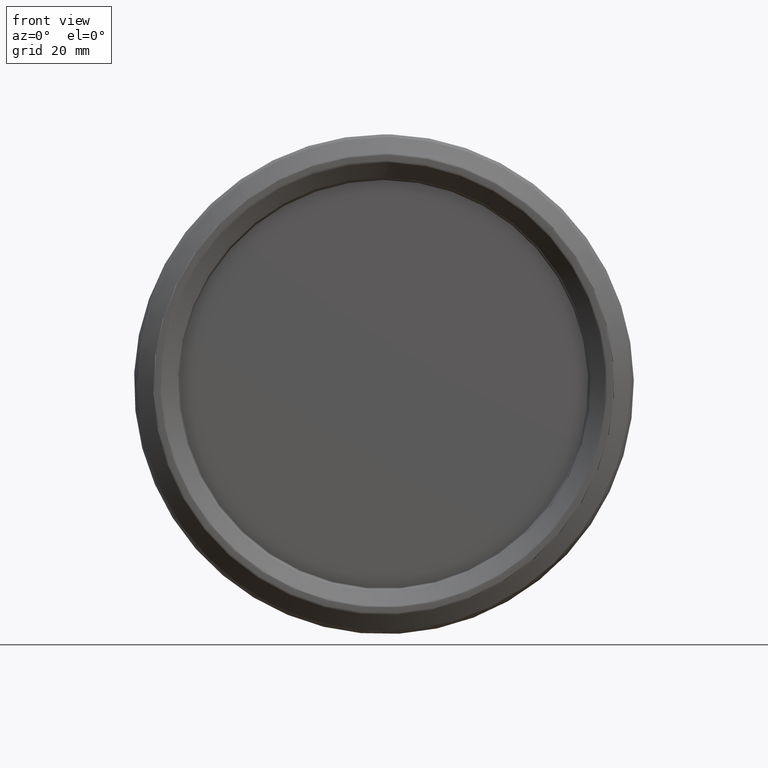
[diagram: clean part render]
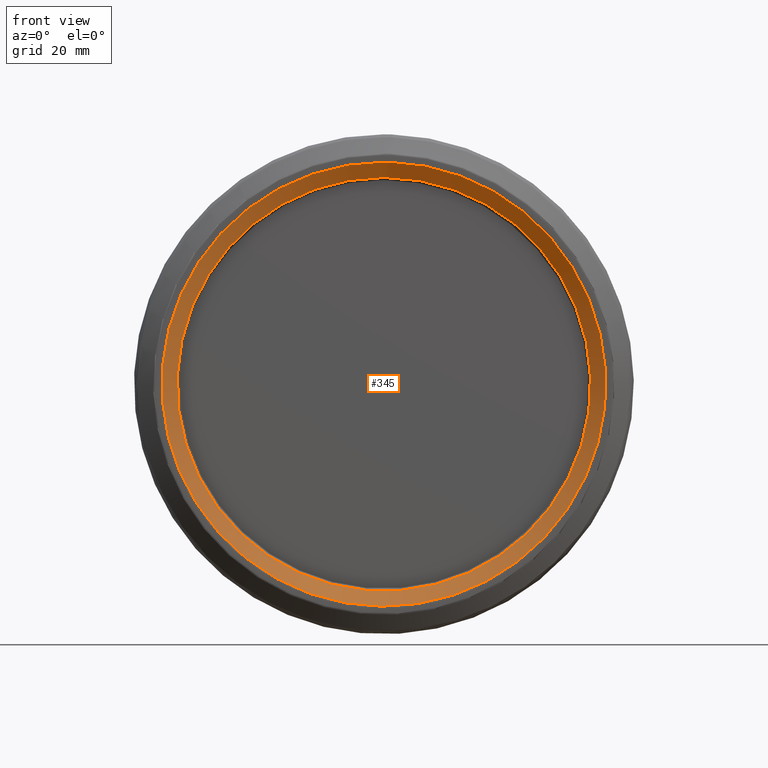
[diagram: same view with one face highlighted and labeled with its STEP entity id]
A machine part, front view. The second image highlights one B-rep face of the part: STEP entity #345.
In plain terms, the highlighted face is a SurfaceOfRevolution surface.
Its self-contained STEP definition (entity closure, byte-faithful):
#105=SURFACE_OF_REVOLUTION('',#233,#126);
#126=AXIS1_PLACEMENT('',#1829,#1327);
#233=B_SPLINE_CURVE_WITH_KNOTS('',3,(#1824,#1825,#1826,#1827,#1828),
 .UNSPECIFIED.,.F.,.F.,(4,1,4),(0.,0.5,1.),.UNSPECIFIED.);
#345=ADVANCED_FACE('',(#421,#422),#105,.T.);
#421=FACE_BOUND('',#528,.T.);
#422=FACE_BOUND('',#529,.T.);
#528=EDGE_LOOP('',(#744));
#529=EDGE_LOOP('',(#745));
#744=ORIENTED_EDGE('',*,*,#960,.F.);
#745=ORIENTED_EDGE('',*,*,#959,.T.);
#851=VERTEX_POINT('',#1815);
#852=VERTEX_POINT('',#1823);
#959=EDGE_CURVE('',#851,#851,#1015,.T.);
#960=EDGE_CURVE('',#852,#852,#1016,.T.);
#1015=CIRCLE('',#1115,68.6438654970139);
#1016=CIRCLE('',#1116,73.703910985617);
#1115=AXIS2_PLACEMENT_3D('',#1814,#1322,#1323);
#1116=AXIS2_PLACEMENT_3D('',#1822,#1325,#1326);
#1322=DIRECTION('',(0.,1.,0.));
#1323=DIRECTION('',(0.,0.,1.));
#1325=DIRECTION('',(0.,1.,0.));
#1326=DIRECTION('',(0.,0.,1.));
#1327=DIRECTION('',(0.,1.,0.));
#1814=CARTESIAN_POINT('',(0.,4.01896603602072,0.));
#1815=CARTESIAN_POINT('',(0.,4.01896603602072,68.6438654970139));
#1822=CARTESIAN_POINT('',(0.,0.187348895711164,0.));
#1823=CARTESIAN_POINT('',(0.,0.187348895711164,73.703910985617));
#1824=CARTESIAN_POINT('',(67.6142816089487,4.01896603602076,11.8443738913427));
#1825=CARTESIAN_POINT('',(68.4737540744605,3.41579398568124,11.5562483618945));
#1826=CARTESIAN_POINT('',(70.2228877890817,2.15925495847552,11.1762841502986));
#1827=CARTESIAN_POINT('',(71.9720804283496,0.846618438660245,11.195160344157));
#1828=CARTESIAN_POINT('',(72.8316118185081,0.187348895711164,11.305875220163));
#1829=CARTESIAN_POINT('',(0.,0.,0.));